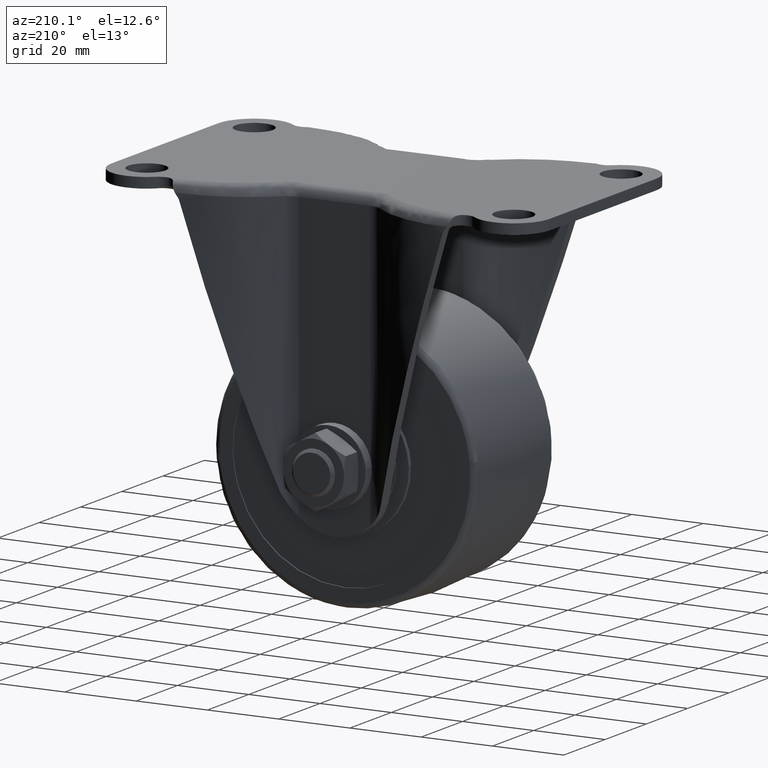
[diagram: clean part render]
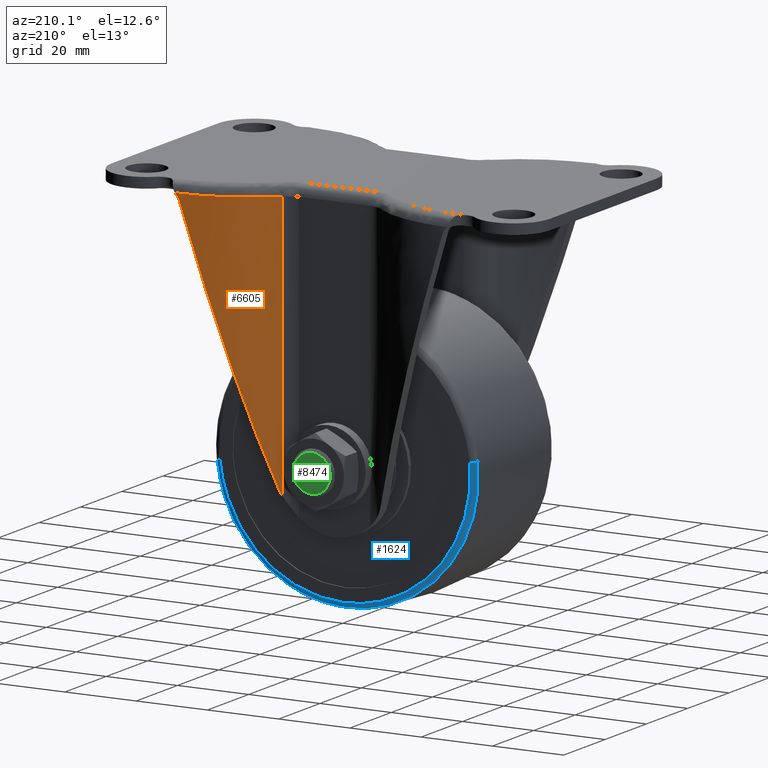
[diagram: same view with three faces highlighted in distinct colors, each labeled with its STEP entity id]
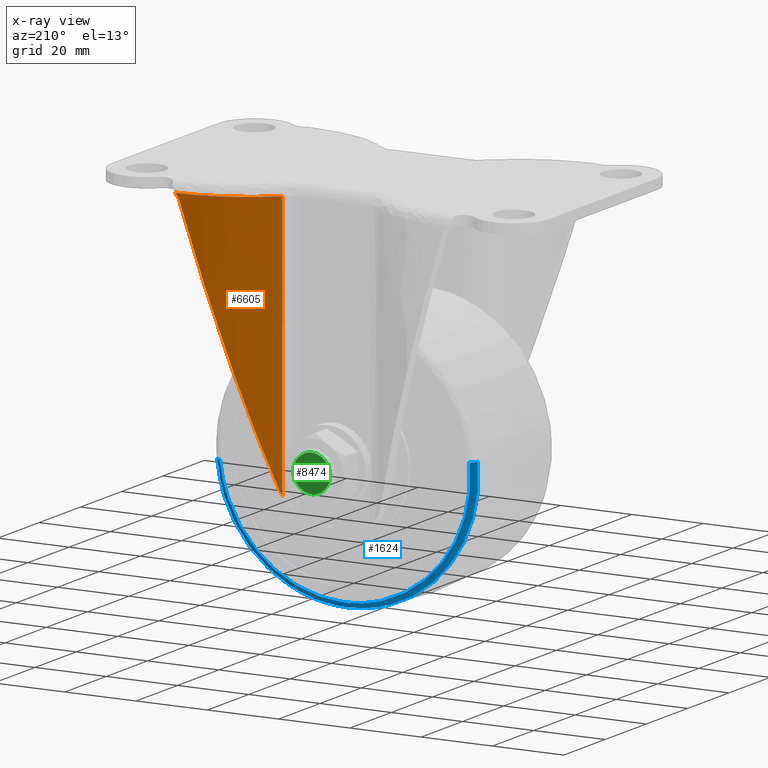
[diagram: x-ray of the same camera — body ghosted, the three highlighted faces saturated]
A machine part, auxiliary view with three faces highlighted in distinct colors.
The next image is the same camera in x-ray (body ghosted, the three faces saturated) — at least one of them is partly hidden behind the body in this view.
Their STEP definitions:

[orange] entity #6605 — the highlighted face is a freeform B-spline surface patch.
#6120=CARTESIAN_POINT('',(38.142106373215348,35.489464346481952,-2.804614684647175));
#6121=VERTEX_POINT('',#6120);
#6139=CARTESIAN_POINT('',(13.742971939924320,25.495297672985849,-2.900000000000000));
#6140=VERTEX_POINT('',#6139);
#6141=CARTESIAN_POINT('',(13.742971939924320,25.495297672985849,-2.900000000000000));
#6142=CARTESIAN_POINT('',(13.956317376170910,25.693409654442132,-2.899958660849165));
#6143=CARTESIAN_POINT('',(14.392077985325329,26.098055749708969,-2.899874225138392));
#6144=CARTESIAN_POINT('',(15.078035907439640,26.697020121316250,-2.899222162607221));
#6145=CARTESIAN_POINT('',(15.806373550619339,27.303415865435500,-2.898191278954213));
#6146=CARTESIAN_POINT('',(16.579848581468170,27.913141543836758,-2.896738971150467));
#6147=CARTESIAN_POINT('',(17.399352453578999,28.523843976589941,-2.894877271402081));
#6148=CARTESIAN_POINT('',(18.266214336944710,29.132451137176030,-2.892602701852895));
#6149=CARTESIAN_POINT('',(19.181525676039008,29.735869117177000,-2.889916189697221));
#6150=CARTESIAN_POINT('',(20.146309080623109,30.330782307574470,-2.886817423261054));
#6151=CARTESIAN_POINT('',(21.161446902488450,30.913708909629459,-2.883306446703635));
#6152=CARTESIAN_POINT('',(22.227676575240839,31.480985810266581,-2.879383208970075));
#6153=CARTESIAN_POINT('',(23.345566011867771,32.028775120966827,-2.875047690109214));
#6154=CARTESIAN_POINT('',(24.515493583933541,32.553066466017917,-2.870299864950149));
#6155=CARTESIAN_POINT('',(25.737625868733868,33.049682803058182,-2.865139713264311));
#6156=CARTESIAN_POINT('',(27.011895192074469,33.514286650501653,-2.859567214450448));
#6157=CARTESIAN_POINT('',(28.337976532537631,33.942392221360322,-2.853582356403943));
#6158=CARTESIAN_POINT('',(29.715264070085190,34.329364930746543,-2.847185102499812));
#6159=CARTESIAN_POINT('',(31.142847481349740,34.670480420320906,-2.840375517745196));
#6160=CARTESIAN_POINT('',(32.619488184869986,34.960764144619873,-2.833153278815451));
#6161=CARTESIAN_POINT('',(34.143595652377790,35.195693284701449,-2.825519571204250));
#6162=CARTESIAN_POINT('',(35.713204297303427,35.368573184952737,-2.817469745645338));
#6163=CARTESIAN_POINT('',(37.051619817137158,35.461701344645491,-2.810458737269837));
#6164=CARTESIAN_POINT('',(37.866021740389208,35.483907876091052,-2.806098288943902));
#6165=CARTESIAN_POINT('',(38.142106373215348,35.489464346481952,-2.804614684647175));
#6166=B_SPLINE_CURVE_WITH_KNOTS('',3,(#6141,#6142,#6143,#6144,#6145,#6146,#6147,#6148,#6149,#6150,#6151,#6152,#6153,#6154,#6155,#6156,#6157,#6158,#6159,#6160,#6161,#6162,#6163,#6164,#6165),.UNSPECIFIED.,.F.,.U.,(4,1,1,1,1,1,1,1,1,1,1,1,1,1,1,1,1,1,1,1,1,1,4),(0.0,0.031426806929676,0.064189629609072,0.098288465638796,0.133723311607639,0.170494163190204,0.208601015227444,0.248043861793539,0.288822696251835,0.330937511301901,0.374388299019353,0.419175050889742,0.465297757837530,0.512756410250995,0.561550998003715,0.611681510473201,0.663147936557108,0.715950264687390,0.770088482842723,0.825562578559413,0.882372538941041,0.940518350666986,0.970327958371231),.UNSPECIFIED.);
#6167=EDGE_CURVE('',#6140,#6121,#6166,.T.);
#6529=CARTESIAN_POINT('',(13.510108636960609,25.274161493830270,-79.378541855554332));
#6530=CARTESIAN_POINT('',(13.510108636960609,25.274161493830270,-0.890266505374498));
#6531=CARTESIAN_POINT('',(24.391567310923779,35.698297108717270,-79.378541855554317));
#6532=CARTESIAN_POINT('',(24.391567310923779,35.698297108717270,-0.890266505374498));
#6533=CARTESIAN_POINT('',(39.459019237575063,35.496706859012477,-79.378541855554346));
#6534=CARTESIAN_POINT('',(39.459019237575063,35.496706859012477,-0.890266505374498));
#6542=(BOUNDED_SURFACE()B_SPLINE_SURFACE(1,2,((#6529,#6531,#6533),(#6530,#6532,#6534)),.UNSPECIFIED.,.F.,.F.,.U.)B_SPLINE_SURFACE_WITH_KNOTS((2,2),(3,3),(0.0,78.488275350179848),(0.0,28.970211980972529),.UNSPECIFIED.)GEOMETRIC_REPRESENTATION_ITEM()RATIONAL_B_SPLINE_SURFACE(((1.0,0.924682819754262,0.998410379440267),(1.0,0.924682819754262,0.998410379440267)))REPRESENTATION_ITEM('')SURFACE());
#6543=ORIENTED_EDGE('',*,*,#6167,.T.);
#6544=CARTESIAN_POINT('',(37.455551904384798,35.468958765362451,-3.726961038572935));
#6545=VERTEX_POINT('',#6544);
#6546=CARTESIAN_POINT('',(38.142106373215348,35.489464346481952,-2.804614684647175));
#6547=CARTESIAN_POINT('',(38.101388534464711,35.488600117116484,-2.869922461548940));
#6548=CARTESIAN_POINT('',(38.020053437563817,35.486873760727200,-3.000375536809961));
#6549=CARTESIAN_POINT('',(37.889083434732683,35.483519975079460,-3.189997693449988));
#6550=CARTESIAN_POINT('',(37.751683015892851,35.479499898497089,-3.374584528815705));
#6551=CARTESIAN_POINT('',(37.607780146852640,35.474769469200233,-3.554243054261581));
#6552=CARTESIAN_POINT('',(37.506320600490831,35.470896657126303,-3.669358935865866));
#6553=CARTESIAN_POINT('',(37.455551904384798,35.468958765362451,-3.726961038572935));
#6554=B_SPLINE_CURVE_WITH_KNOTS('',3,(#6546,#6547,#6548,#6549,#6550,#6551,#6552,#6553),.UNSPECIFIED.,.F.,.U.,(4,1,1,1,1,4),(0.000033955136837,0.200504919082866,0.400478156823005,0.600198522857384,0.799945885590562,1.0),.UNSPECIFIED.);
#6555=EDGE_CURVE('',#6121,#6545,#6554,.T.);
#6556=ORIENTED_EDGE('',*,*,#6555,.T.);
#6557=CARTESIAN_POINT('',(36.930108218803547,35.443599907763200,-4.644509719684271));
#6558=VERTEX_POINT('',#6557);
#6559=CARTESIAN_POINT('',(37.455551904384777,35.468958765362473,-3.726961038572946));
#6560=CARTESIAN_POINT('',(37.336275622419393,35.464056533227662,-3.859400309783534));
#6561=CARTESIAN_POINT('',(37.232829254816387,35.459234614413397,-4.002421345100010));
#6562=CARTESIAN_POINT('',(37.100832865673723,35.452691609109763,-4.232461090720933));
#6563=CARTESIAN_POINT('',(37.060682436592771,35.450622476164597,-4.311853194543876));
#6564=CARTESIAN_POINT('',(36.988675836967381,35.446817106464607,-4.475617505614574));
#6565=CARTESIAN_POINT('',(36.957150392103323,35.445098821207552,-4.559208034975216));
#6566=CARTESIAN_POINT('',(36.930108218803547,35.443599907763200,-4.644509719684271));
#6567=B_SPLINE_CURVE_WITH_KNOTS('',3,(#6559,#6560,#6561,#6562,#6563,#6564,#6565,#6566),.UNSPECIFIED.,.F.,.U.,(4,2,2,4),(0.0,0.500000000000000,0.750000000000000,1.0),.UNSPECIFIED.);
#6568=EDGE_CURVE('',#6545,#6558,#6567,.T.);
#6569=ORIENTED_EDGE('',*,*,#6568,.T.);
#6570=CARTESIAN_POINT('',(14.298687000000101,26.007770663167300,-76.032942000000006));
#6571=VERTEX_POINT('',#6570);
#6572=CARTESIAN_POINT('',(36.930108218803511,35.443599907763222,-4.644509719684269));
#6573=CARTESIAN_POINT('',(23.947367755030093,34.723983033404394,-45.597195786123180));
#6574=CARTESIAN_POINT('',(14.298687000000021,26.007770663167310,-76.032942000000006));
#6582=(BOUNDED_CURVE()B_SPLINE_CURVE(2,(#6572,#6573,#6574),.UNSPECIFIED.,.F.,.U.)CURVE()GEOMETRIC_REPRESENTATION_ITEM()QUASI_UNIFORM_CURVE()RATIONAL_B_SPLINE_CURVE((1.0,0.942872136315907,1.0))REPRESENTATION_ITEM(''));
#6583=EDGE_CURVE('',#6558,#6571,#6582,.T.);
#6584=ORIENTED_EDGE('',*,*,#6583,.T.);
#6585=CARTESIAN_POINT('',(13.742971939924320,25.495297672985849,-77.510885095288302));
#6586=VERTEX_POINT('',#6585);
#6587=CARTESIAN_POINT('',(13.742971939924301,25.495297672985860,-77.510885095288316));
#6588=CARTESIAN_POINT('',(13.846160577857219,25.592436919062131,-77.274959957136588));
#6589=CARTESIAN_POINT('',(13.944343746797159,25.683741667859870,-77.033946705865972));
#6590=CARTESIAN_POINT('',(14.083512951912789,25.811914161948700,-76.664493782331689));
#6591=CARTESIAN_POINT('',(14.128550953509681,25.853173113218020,-76.540019734695193));
#6592=CARTESIAN_POINT('',(14.215812621054321,25.932740435201062,-76.288363161652356));
#6593=CARTESIAN_POINT('',(14.258117086226830,25.971121509436621,-76.160915550857169));
#6594=CARTESIAN_POINT('',(14.298687000000040,26.007770663167332,-76.032942000000006));
#6595=B_SPLINE_CURVE_WITH_KNOTS('',3,(#6587,#6588,#6589,#6590,#6591,#6592,#6593,#6594),.UNSPECIFIED.,.F.,.U.,(4,2,2,4),(0.0,0.499999999999999,0.749999999999999,1.0),.UNSPECIFIED.);
#6596=EDGE_CURVE('',#6586,#6571,#6595,.T.);
#6597=ORIENTED_EDGE('',*,*,#6596,.F.);
#6598=CARTESIAN_POINT('',(13.742971939924320,25.495297672985849,-77.510885095288302));
#6599=CARTESIAN_POINT('',(13.742971939924320,25.495297672985849,-2.900000000000000));
#6600=QUASI_UNIFORM_CURVE('',1,(#6598,#6599),.UNSPECIFIED.,.F.,.U.);
#6601=EDGE_CURVE('',#6586,#6140,#6600,.T.);
#6602=ORIENTED_EDGE('',*,*,#6601,.T.);
#6603=EDGE_LOOP('',(#6543,#6556,#6569,#6584,#6597,#6602));
#6604=FACE_OUTER_BOUND('',#6603,.T.);
#6605=ADVANCED_FACE('',(#6604),#6542,.T.);

[blue] entity #1624 — the highlighted face is a freeform B-spline surface patch.
#1392=CARTESIAN_POINT('',(-35.049223704759932,19.0,-64.964549374233371));
#1393=VERTEX_POINT('',#1392);
#1394=CARTESIAN_POINT('',(0.0,19.0,-103.727084639409000));
#1395=VERTEX_POINT('',#1394);
#1396=CARTESIAN_POINT('',(-35.049223704759918,19.0,-64.964549374233371));
#1397=CARTESIAN_POINT('',(-35.227084656542004,18.999999999999996,-66.727800784403442));
#1398=CARTESIAN_POINT('',(-35.227084656101013,19.0,-68.499999998316255));
#1399=CARTESIAN_POINT('',(-35.227084647335140,18.999999999999993,-103.727084638609470));
#1400=CARTESIAN_POINT('',(0.0,19.0,-103.727084639409000));
#1408=(BOUNDED_CURVE()B_SPLINE_CURVE(2,(#1396,#1397,#1398,#1399,#1400),.UNSPECIFIED.,.F.,.U.)B_SPLINE_CURVE_WITH_KNOTS((3,2,3),(0.732576558916030,0.750000000000000,1.0),.UNSPECIFIED.)CURVE()GEOMETRIC_REPRESENTATION_ITEM()RATIONAL_B_SPLINE_CURVE((0.962019632126639,0.979587169032438,1.0,0.707106781186548,1.0))REPRESENTATION_ITEM(''));
#1409=EDGE_CURVE('',#1393,#1395,#1408,.T.);
#1426=CARTESIAN_POINT('',(35.049223704759932,19.0,-72.035450625766615));
#1427=VERTEX_POINT('',#1426);
#1443=CARTESIAN_POINT('',(0.0,19.0,-103.727084639409000));
#1444=CARTESIAN_POINT('',(31.852456536322716,19.0,-103.727084640293230));
#1445=CARTESIAN_POINT('',(35.049223704759932,18.999999999999996,-72.035450625766615));
#1453=(BOUNDED_CURVE()B_SPLINE_CURVE(2,(#1443,#1444,#1445),.UNSPECIFIED.,.F.,.U.)B_SPLINE_CURVE_WITH_KNOTS((3,3),(0.0,0.232576558916030),.UNSPECIFIED.)CURVE()GEOMETRIC_REPRESENTATION_ITEM()RATIONAL_B_SPLINE_CURVE((1.0,0.727519612154109,0.962019632126639))REPRESENTATION_ITEM(''));
#1454=EDGE_CURVE('',#1395,#1427,#1453,.T.);
#1496=CARTESIAN_POINT('',(-36.535838923384723,17.632243361924829,-64.814592994570432));
#1497=VERTEX_POINT('',#1496);
#1498=CARTESIAN_POINT('',(-35.049223704759925,18.999999999999996,-64.964549374233371));
#1499=CARTESIAN_POINT('',(-36.415394255323157,18.999999985096558,-64.826742369883107));
#1500=CARTESIAN_POINT('',(-36.535838923384723,17.632243361924832,-64.814592994570432));
#1508=(BOUNDED_CURVE()B_SPLINE_CURVE(2,(#1498,#1499,#1500),.UNSPECIFIED.,.F.,.U.)B_SPLINE_CURVE_WITH_KNOTS((3,3),(-1.722517510963546,-0.277816527753985),.UNSPECIFIED.)CURVE()GEOMETRIC_REPRESENTATION_ITEM()RATIONAL_B_SPLINE_CURVE((0.892725166940150,0.658450696021580,0.892616855732978))REPRESENTATION_ITEM(''));
#1509=EDGE_CURVE('',#1393,#1497,#1508,.T.);
#1526=CARTESIAN_POINT('',(36.535838923384659,17.632243361925511,-72.185407005429596));
#1527=VERTEX_POINT('',#1526);
#1543=CARTESIAN_POINT('',(35.049223704759925,18.999999999999996,-72.035450625766615));
#1544=CARTESIAN_POINT('',(36.415394255322518,18.999999985096537,-72.173257630116851));
#1545=CARTESIAN_POINT('',(36.535838923384659,17.632243361925521,-72.185407005429596));
#1553=(BOUNDED_CURVE()B_SPLINE_CURVE(2,(#1543,#1544,#1545),.UNSPECIFIED.,.F.,.U.)B_SPLINE_CURVE_WITH_KNOTS((3,3),(-1.722517510963534,-0.277816527754478),.UNSPECIFIED.)CURVE()GEOMETRIC_REPRESENTATION_ITEM()RATIONAL_B_SPLINE_CURVE((0.892725166940146,0.658450696021662,0.892616855732818))REPRESENTATION_ITEM(''));
#1554=EDGE_CURVE('',#1427,#1527,#1553,.T.);
#1559=CARTESIAN_POINT('',(-34.851411962647248,18.996679263247195,-63.997473828572140));
#1560=CARTESIAN_POINT('',(-34.900404855336106,18.996679263247199,-64.483172269236363));
#1561=CARTESIAN_POINT('',(-38.475410714377617,18.996679263247206,-99.924532756555806));
#1562=CARTESIAN_POINT('',(-3.525438978910916,18.996679263247199,-103.449971735466690));
#1563=CARTESIAN_POINT('',(31.424532756555781,18.996679263247206,-106.975410714377600));
#1564=CARTESIAN_POINT('',(34.999538615570749,18.996679263247202,-71.534050227321472));
#1565=CARTESIAN_POINT('',(35.048531508233644,18.996679263247195,-71.048351786914495));
#1566=CARTESIAN_POINT('',(-36.404454513652411,19.101011068013381,-63.796833041371443));
#1567=CARTESIAN_POINT('',(-36.455630619093853,19.101011068013371,-64.304175091371079));
#1568=CARTESIAN_POINT('',(-40.189945266689932,19.101011068013388,-101.324867313121090));
#1569=CARTESIAN_POINT('',(-3.682538976784432,19.101011068013381,-105.007406289905480));
#1570=CARTESIAN_POINT('',(32.824867313121047,19.101011068013388,-108.689945266689920));
#1571=CARTESIAN_POINT('',(36.559181960689351,19.101011068013385,-71.669253045214973));
#1572=CARTESIAN_POINT('',(36.610358066103693,19.101011068013381,-71.161910995483993));
#1573=CARTESIAN_POINT('',(-36.438251003506544,17.532569941823212,-63.792466802774477));
#1574=CARTESIAN_POINT('',(-36.489474618868165,17.532569941823208,-64.300279849542903));
#1575=CARTESIAN_POINT('',(-40.227256059986743,17.532569941823205,-101.355340652439850));
#1576=CARTESIAN_POINT('',(-3.685957703773449,17.532569941823215,-105.041298356213300));
#1577=CARTESIAN_POINT('',(32.855340652439864,17.532569941823205,-108.727256059986760));
#1578=CARTESIAN_POINT('',(36.593122093530695,17.532569941823208,-71.672195257365090));
#1579=CARTESIAN_POINT('',(36.644345708865181,17.532569941823208,-71.164382210865568));
#1587=(BOUNDED_SURFACE()B_SPLINE_SURFACE(2,2,((#1559,#1566,#1573),(#1560,#1567,#1574),(#1561,#1568,#1575),(#1562,#1569,#1576),(#1563,#1570,#1577),(#1564,#1571,#1578),(#1565,#1572,#1579)),.UNSPECIFIED.,.F.,.F.,.U.)B_SPLINE_SURFACE_WITH_KNOTS((3,1,2,1,3),(3,3),(0.0,1.217016806925543,62.067857129850552,122.918697452775600,124.135714259045200),(0.0,2.564993725355518),.UNSPECIFIED.)GEOMETRIC_REPRESENTATION_ITEM()RATIONAL_B_SPLINE_SURFACE(((0.928044764976336,0.641309606291205,0.927924479441126),(0.922671357984727,0.637596404458404,0.922551768906369),(0.648627601515759,0.448223111056810,0.648543531736859),(0.917297950993118,0.633883202625603,0.917179058371612),(0.648627601515759,0.448223111056810,0.648543531736859),(0.922671357981831,0.637596404456403,0.922551768903473),(0.928044764970544,0.641309606287203,0.927924479435334)))REPRESENTATION_ITEM('')SURFACE());
#1588=ORIENTED_EDGE('',*,*,#1454,.T.);
#1589=ORIENTED_EDGE('',*,*,#1554,.T.);
#1590=CARTESIAN_POINT('',(0.0,17.632242451286409,-105.221243912739000));
#1591=VERTEX_POINT('',#1590);
#1592=CARTESIAN_POINT('',(0.0,17.632242451286409,-105.221243912739000));
#1593=CARTESIAN_POINT('',(33.203480704234792,17.632242906607491,-105.221243907292730));
#1594=CARTESIAN_POINT('',(36.535838923384659,17.632243361925514,-72.185407005429596));
#1602=(BOUNDED_CURVE()B_SPLINE_CURVE(2,(#1592,#1593,#1594),.UNSPECIFIED.,.F.,.U.)B_SPLINE_CURVE_WITH_KNOTS((3,3),(0.0,0.232576558891007),.UNSPECIFIED.)CURVE()GEOMETRIC_REPRESENTATION_ITEM()RATIONAL_B_SPLINE_CURVE((1.0,0.727519612183426,0.962019632076178))REPRESENTATION_ITEM(''));
#1603=EDGE_CURVE('',#1591,#1527,#1602,.T.);
#1604=ORIENTED_EDGE('',*,*,#1603,.F.);
#1605=CARTESIAN_POINT('',(-36.535838923384716,17.632243361924832,-64.814592994570432));
#1606=CARTESIAN_POINT('',(-36.721243863648667,17.632243341213112,-66.652632839731339));
#1607=CARTESIAN_POINT('',(-36.721243866364922,17.632243318307051,-68.500000010370528));
#1608=CARTESIAN_POINT('',(-36.721243920357516,17.632242862989369,-105.221243917663590));
#1609=CARTESIAN_POINT('',(0.0,17.632242451286409,-105.221243912739000));
#1617=(BOUNDED_CURVE()B_SPLINE_CURVE(2,(#1605,#1606,#1607,#1608,#1609),.UNSPECIFIED.,.F.,.U.)B_SPLINE_CURVE_WITH_KNOTS((3,2,3),(0.732576558891010,0.750000000000000,1.0),.UNSPECIFIED.)CURVE()GEOMETRIC_REPRESENTATION_ITEM()RATIONAL_B_SPLINE_CURVE((0.962019632076184,0.979587169003125,1.0,0.707106781186548,1.0))REPRESENTATION_ITEM(''));
#1618=EDGE_CURVE('',#1497,#1591,#1617,.T.);
#1619=ORIENTED_EDGE('',*,*,#1618,.F.);
#1620=ORIENTED_EDGE('',*,*,#1509,.F.);
#1621=ORIENTED_EDGE('',*,*,#1409,.T.);
#1622=EDGE_LOOP('',(#1588,#1589,#1604,#1619,#1620,#1621));
#1623=FACE_OUTER_BOUND('',#1622,.T.);
#1624=ADVANCED_FACE('',(#1623),#1587,.T.);

[green] entity #8474 — the highlighted face is a freeform B-spline surface patch.
#8403=CARTESIAN_POINT('',(-5.719350816504441,35.0,-62.780521120057102));
#8404=CARTESIAN_POINT('',(-5.719350816504441,35.0,-74.219479158892597));
#8405=CARTESIAN_POINT('',(5.719350723521214,35.0,-62.780521120057102));
#8406=CARTESIAN_POINT('',(5.719350723521214,35.0,-74.219479158892597));
#8407=B_SPLINE_SURFACE_WITH_KNOTS('',1,1,((#8403,#8405),(#8404,#8406)),.UNSPECIFIED.,.F.,.F.,.U.,(2,2),(2,2),(0.0,11.438958038835500),(0.0,11.438701540025651),.UNSPECIFIED.);
#8408=CARTESIAN_POINT('',(-5.190299953719349,34.999999999887173,-68.182547654605344));
#8409=VERTEX_POINT('',#8408);
#8410=CARTESIAN_POINT('',(0.0,35.0,-73.699999000000119));
#8411=VERTEX_POINT('',#8410);
#8412=CARTESIAN_POINT('',(-5.190299953719349,34.999999999887166,-68.182547654605344));
#8413=CARTESIAN_POINT('',(-5.199999000111118,34.999999999888793,-68.341125660964593));
#8414=CARTESIAN_POINT('',(-5.199999000109398,34.999999999890520,-68.499999999993321));
#8415=CARTESIAN_POINT('',(-5.199999000053085,34.999999999946922,-73.699998999996879));
#8416=CARTESIAN_POINT('',(0.0,35.0,-73.699999000000119));
#8424=(BOUNDED_CURVE()B_SPLINE_CURVE(2,(#8412,#8413,#8414,#8415,#8416),.UNSPECIFIED.,.F.,.U.)B_SPLINE_CURVE_WITH_KNOTS((3,2,3),(0.739332962213543,0.750000000000000,1.0),.UNSPECIFIED.)CURVE()GEOMETRIC_REPRESENTATION_ITEM()RATIONAL_B_SPLINE_CURVE((0.976072041612281,0.987502787870080,1.0,0.707106781186547,1.0))REPRESENTATION_ITEM(''));
#8425=EDGE_CURVE('',#8409,#8411,#8424,.T.);
#8426=ORIENTED_EDGE('',*,*,#8425,.F.);
#8427=CARTESIAN_POINT('',(0.0,35.0,-63.300000999999902));
#8428=VERTEX_POINT('',#8427);
#8429=CARTESIAN_POINT('',(0.0,35.0,-63.300000999999902));
#8430=CARTESIAN_POINT('',(-4.891670606452610,34.999999999943590,-63.300000999996435));
#8431=CARTESIAN_POINT('',(-5.190299953719349,34.999999999887166,-68.182547654605344));
#8439=(BOUNDED_CURVE()B_SPLINE_CURVE(2,(#8429,#8430,#8431),.UNSPECIFIED.,.F.,.U.)B_SPLINE_CURVE_WITH_KNOTS((3,3),(0.500000000000000,0.739332962213543),.UNSPECIFIED.)CURVE()GEOMETRIC_REPRESENTATION_ITEM()RATIONAL_B_SPLINE_CURVE((1.0,0.719603993316468,0.976072041612281))REPRESENTATION_ITEM(''));
#8440=EDGE_CURVE('',#8428,#8409,#8439,.T.);
#8441=ORIENTED_EDGE('',*,*,#8440,.F.);
#8442=CARTESIAN_POINT('',(5.190299953719347,34.999999999887173,-68.817452345394656));
#8443=VERTEX_POINT('',#8442);
#8444=CARTESIAN_POINT('',(5.190299953719347,34.999999999887166,-68.817452345394656));
#8445=CARTESIAN_POINT('',(5.199999000111115,34.999999999888793,-68.658874339035421));
#8446=CARTESIAN_POINT('',(5.199999000109394,34.999999999890512,-68.500000000006693));
#8447=CARTESIAN_POINT('',(5.199999000053083,34.999999999946922,-63.300001000003128));
#8448=CARTESIAN_POINT('',(0.0,35.0,-63.300000999999902));
#8456=(BOUNDED_CURVE()B_SPLINE_CURVE(2,(#8444,#8445,#8446,#8447,#8448),.UNSPECIFIED.,.F.,.U.)B_SPLINE_CURVE_WITH_KNOTS((3,2,3),(0.239332962213543,0.250000000000000,0.500000000000000),.UNSPECIFIED.)CURVE()GEOMETRIC_REPRESENTATION_ITEM()RATIONAL_B_SPLINE_CURVE((0.976072041612281,0.987502787870080,1.0,0.707106781186547,1.0))REPRESENTATION_ITEM(''));
#8457=EDGE_CURVE('',#8443,#8428,#8456,.T.);
#8458=ORIENTED_EDGE('',*,*,#8457,.F.);
#8459=CARTESIAN_POINT('',(0.0,35.0,-73.699999000000119));
#8460=CARTESIAN_POINT('',(4.891670606452609,34.999999999943576,-73.699999000003558));
#8461=CARTESIAN_POINT('',(5.190299953719347,34.999999999887166,-68.817452345394656));
#8469=(BOUNDED_CURVE()B_SPLINE_CURVE(2,(#8459,#8460,#8461),.UNSPECIFIED.,.F.,.U.)B_SPLINE_CURVE_WITH_KNOTS((3,3),(0.0,0.239332962213543),.UNSPECIFIED.)CURVE()GEOMETRIC_REPRESENTATION_ITEM()RATIONAL_B_SPLINE_CURVE((1.0,0.719603993316468,0.976072041612281))REPRESENTATION_ITEM(''));
#8470=EDGE_CURVE('',#8411,#8443,#8469,.T.);
#8471=ORIENTED_EDGE('',*,*,#8470,.F.);
#8472=EDGE_LOOP('',(#8426,#8441,#8458,#8471));
#8473=FACE_OUTER_BOUND('',#8472,.T.);
#8474=ADVANCED_FACE('',(#8473),#8407,.F.);